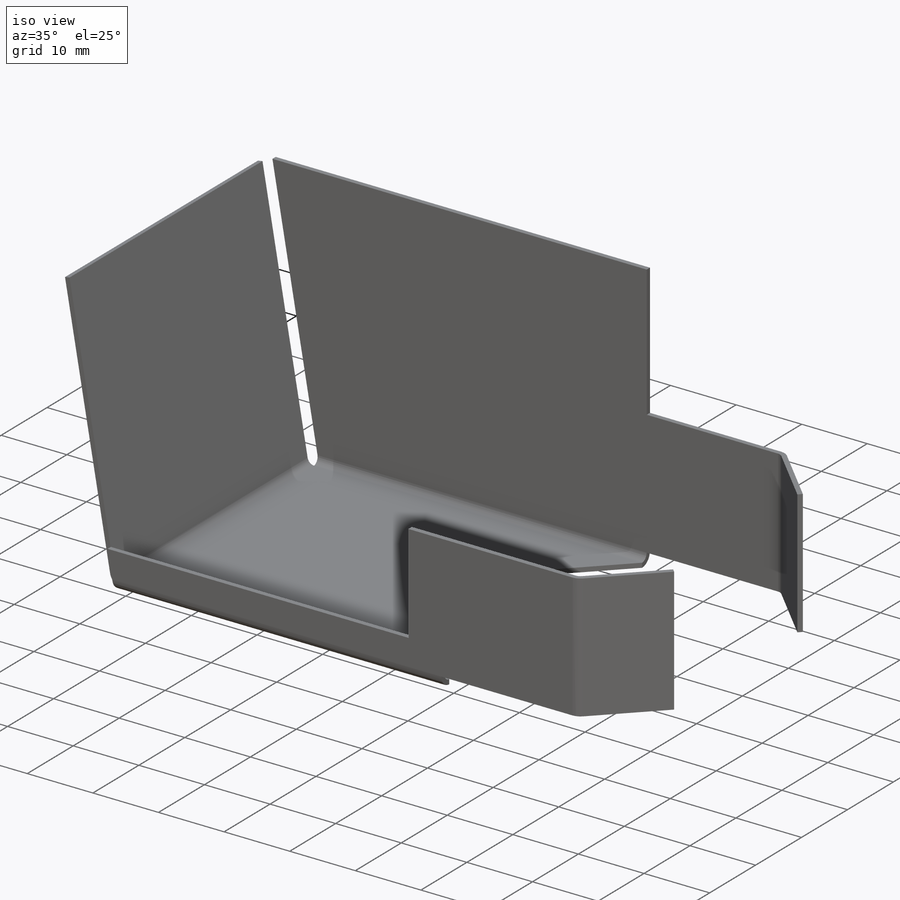
[diagram: iso view]
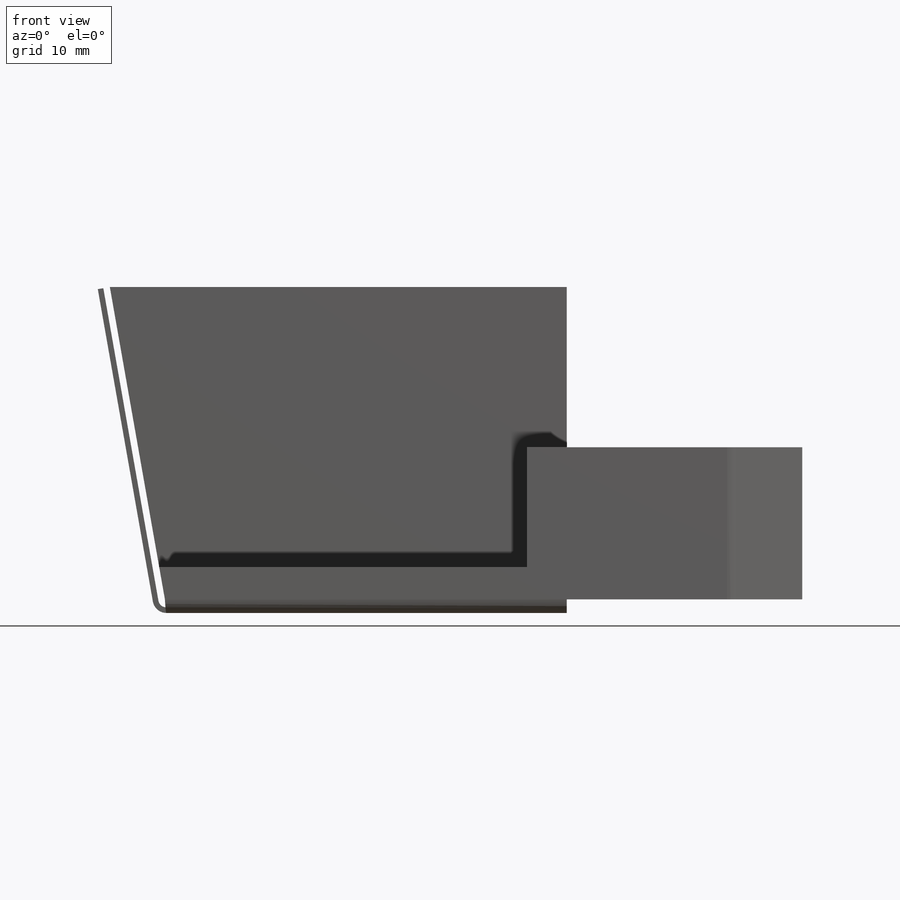
[diagram: front view]
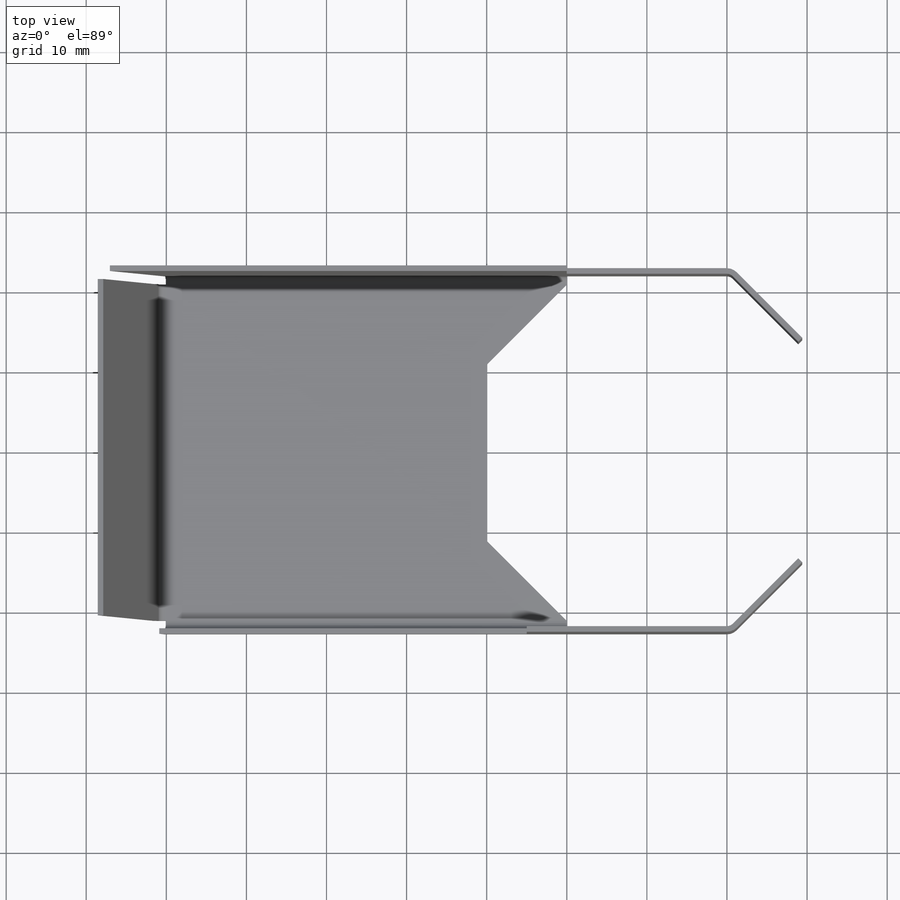
[diagram: top view]
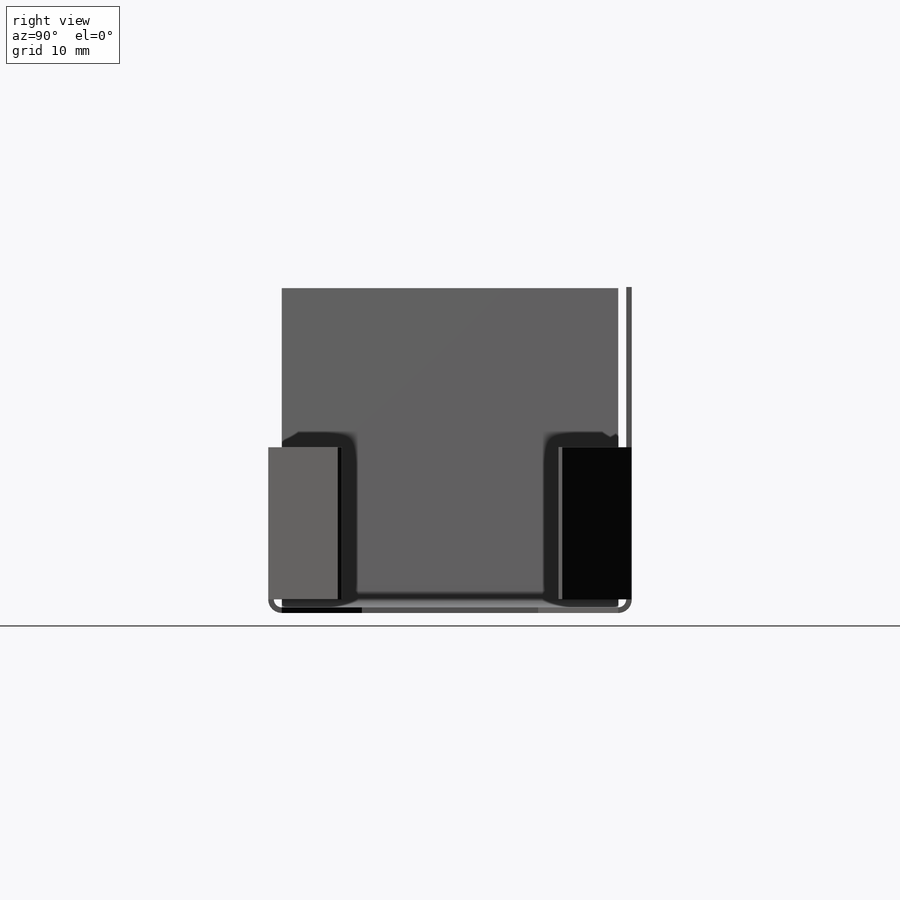
[diagram: right view]
SOLIDWORKS PART (.sldprt)
format: sldprt  version: not decoded by parser v0  size: 349,184 bytes
history: native  units: mm
features: sketch x15, sheet_metal_op x7, mirror x3, material x1 + 5 further entries (+11 scaffold rows collapsed; 1 parser-record rows omitted)
feature tree (43):
  scaffold x11  (default folders/planes/origin — collapsed)
  material  "6061 Alloy"
  sketch  "Sketch1"  dims[c1.D1=42.0mm c1.D2=40.0mm c1.D3=42.0mm c2.D3=~47.758128deg c3.D3=~785.398163mm c3.D4=10.0mm]
  sheet_metal_op  "Sheet-Metal1"
  sheet_metal_op  "Base-Flange1"
  sketch  "Sketch6"  dims[c1.D1=40.0mm c1.D2=~174.532925mm c2.D1=1.0mm c2.D4=~1570.796327mm c2.D5=3.0 c2.D8=~0.020054deg c2.D9=~0.020054deg c3.D1=1.0mm c3.D2=~28.64789deg c3.D3=0.0deg c3.D6=10.0mm c3.D7=40.0mm c3.Edge-Flange2=0.0]
  sketch  "Sketch9"  dims[c1.D1=45.0mm c1.D2=15.0mm c1.D3=20.0mm c2.D2=5.0mm c2.D4=~174.532925mm c2.D1=5.0mm]
  sheet_metal_op  "EdgeBend2"
  sketch  "Sketch11"
  sketch  "Sketch13"  dims[c1.D1=~12.099875mm c1.D2=20.0mm c2.D1=~12.099875mm c2.D2=20.0mm c3.D1=10.0mm c3.D2=20.0mm c3.D3=20.0mm]
  sketch  "Sheet-Metal2"  dims[D1=1.0mm D2=~40.107046deg D3=~0.040107deg Thickness=0.7mm D6=~28.64789deg]
  sketch  "Sheet-Metal3"  dims[D1=1.0mm D2=~40.107046deg D3=~0.040107deg Thickness=0.7mm D6=~28.64789deg]
  sheet_metal_op  "Tab2"  Edge-Flange5=0
  sketch  "Sketch26"
  sheet_metal_op  "EdgeBend7"
  mirror  "Mirror1"
  sheet_metal_op  "MirrorBend2"  Edge-Flange4=0
  sketch  "Sketch19"
  sheet_metal_op  "EdgeBend6"
  "Flat-Pattern1"
  sketch  "Bend-Lines1"
  sketch  "Bounding-Box1"
  "Flatten-<EdgeBend4>1"
  "Flatten-<EdgeBend6>1"
  "Flatten-<EdgeBend7>1"
  "Flatten-<MirrorBend2>1"
  parser-record x1  (decoder bookkeeping rows leaked as tree rows — omitted from the tree; the rows remain in map.json)
  mirror  "Flat-Pattern2"
  sketch  "Bend-Lines2"
  sketch  "Bounding-Box2"
  mirror  "Flat-Pattern3"
  sketch  "Bend-Lines3"
  sketch  "Bounding-Box3"
decode coverage: 8 of 25 modeling features carry decoded parameters; 5 rows unclassified (native names shown)
note: ~ marks probable driven/reference dimensions
note: suppression state not decoded; provenance and decode notes live in map.json
